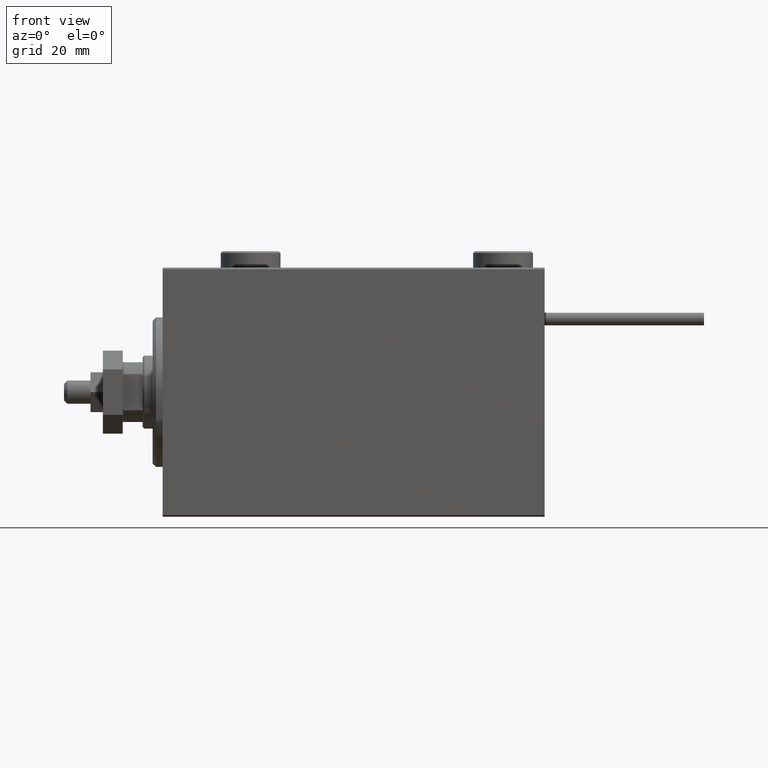
[diagram: clean part render]
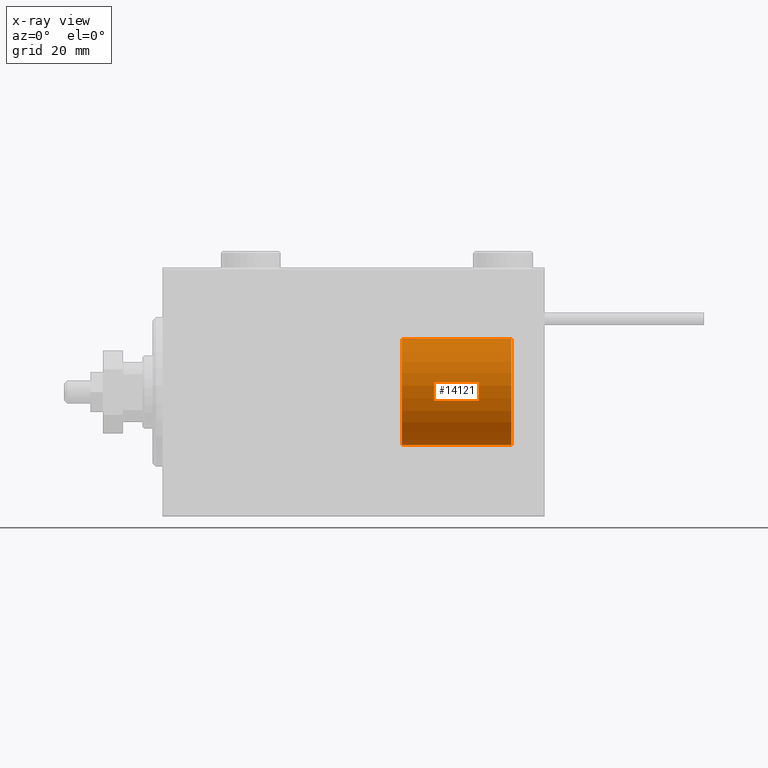
[diagram: x-ray — body ghosted, one internal face saturated and labeled with its STEP entity id]
A machine part, front view, then the same camera in x-ray: the body is ghosted and one INTERNAL B-rep face — a face not visible from any outside direction — is saturated and labeled: STEP entity #14121.
In plain terms, the highlighted cylindrical surface (partial cylindrical patch) has radius 16 mm, axis along (1, -0, -0).
Its self-contained STEP definition (entity closure, byte-faithful):
#18 = CIRCLE ( 'NONE', #46640, 16.00000000000000000 ) ;
#3944 = VECTOR ( 'NONE', #16253, 1000.000000000000000 ) ;
#5240 = DIRECTION ( 'NONE',  ( -0.000000000000000000, -0.000000000000000000, -1.000000000000000000 ) ) ;
#5735 = EDGE_CURVE ( 'NONE', #20322, #28662, #18, .T. ) ;
#7277 = ORIENTED_EDGE ( 'NONE', *, *, #19170, .T. ) ;
#8899 = CARTESIAN_POINT ( 'NONE',  ( 0.000000000000000000, 0.000000000000000000, 33.00000000000000000 ) ) ;
#9268 = DIRECTION ( 'NONE',  ( 0.000000000000000000, 0.000000000000000000, 1.000000000000000000 ) ) ;
#9772 = DIRECTION ( 'NONE',  ( 1.000000000000000000, 0.000000000000000000, 0.000000000000000000 ) ) ;
#11799 = LINE ( 'NONE', #39956, #3944 ) ;
#13785 = CARTESIAN_POINT ( 'NONE',  ( 16.00000000000000000, 1.959434878635765131E-15, 0.000000000000000000 ) ) ;
#14121 = ADVANCED_FACE ( 'NONE', ( #36547 ), #44598, .T. ) ;
#14710 = VECTOR ( 'NONE', #25496, 1000.000000000000000 ) ;
#14870 = EDGE_LOOP ( 'NONE', ( #30944, #26796, #33070, #7277 ) ) ;
#15395 = VERTEX_POINT ( 'NONE', #13785 ) ;
#16253 = DIRECTION ( 'NONE',  ( -0.000000000000000000, -0.000000000000000000, -1.000000000000000000 ) ) ;
#19170 = EDGE_CURVE ( 'NONE', #48885, #15395, #29775, .T. ) ;
#20322 = VERTEX_POINT ( 'NONE', #32929 ) ;
#21106 = LINE ( 'NONE', #45539, #14710 ) ;
#23712 = DIRECTION ( 'NONE',  ( 0.000000000000000000, 0.000000000000000000, 1.000000000000000000 ) ) ;
#24812 = DIRECTION ( 'NONE',  ( -1.000000000000000000, 0.000000000000000000, 0.000000000000000000 ) ) ;
#25496 = DIRECTION ( 'NONE',  ( -0.000000000000000000, -0.000000000000000000, -1.000000000000000000 ) ) ;
#26796 = ORIENTED_EDGE ( 'NONE', *, *, #5735, .F. ) ;
#28030 = CARTESIAN_POINT ( 'NONE',  ( 16.00000000000000000, 1.959434878635765131E-15, 33.00000000000000000 ) ) ;
#28662 = VERTEX_POINT ( 'NONE', #28030 ) ;
#29775 = CIRCLE ( 'NONE', #31456, 16.00000000000000000 ) ;
#30944 = ORIENTED_EDGE ( 'NONE', *, *, #45794, .F. ) ;
#31248 = CARTESIAN_POINT ( 'NONE',  ( 0.000000000000000000, 0.000000000000000000, 33.00000000000000000 ) ) ;
#31456 = AXIS2_PLACEMENT_3D ( 'NONE', #44720, #9268, #9772 ) ;
#32909 = CARTESIAN_POINT ( 'NONE',  ( -16.00000000000000000, 0.000000000000000000, 0.000000000000000000 ) ) ;
#32929 = CARTESIAN_POINT ( 'NONE',  ( -16.00000000000000000, 0.000000000000000000, 33.00000000000000000 ) ) ;
#33070 = ORIENTED_EDGE ( 'NONE', *, *, #51144, .T. ) ;
#35170 = DIRECTION ( 'NONE',  ( 1.000000000000000000, 0.000000000000000000, 0.000000000000000000 ) ) ;
#36547 = FACE_OUTER_BOUND ( 'NONE', #14870, .T. ) ;
#39956 = CARTESIAN_POINT ( 'NONE',  ( -16.00000000000000000, 0.000000000000000000, 33.00000000000000000 ) ) ;
#44598 = CYLINDRICAL_SURFACE ( 'NONE', #45424, 16.00000000000000000 ) ;
#44720 = CARTESIAN_POINT ( 'NONE',  ( 0.000000000000000000, 0.000000000000000000, 0.000000000000000000 ) ) ;
#45424 = AXIS2_PLACEMENT_3D ( 'NONE', #8899, #5240, #24812 ) ;
#45539 = CARTESIAN_POINT ( 'NONE',  ( 16.00000000000000000, 1.959434878635765131E-15, 33.00000000000000000 ) ) ;
#45794 = EDGE_CURVE ( 'NONE', #28662, #15395, #21106, .T. ) ;
#46640 = AXIS2_PLACEMENT_3D ( 'NONE', #31248, #23712, #35170 ) ;
#48885 = VERTEX_POINT ( 'NONE', #32909 ) ;
#51144 = EDGE_CURVE ( 'NONE', #20322, #48885, #11799, .T. ) ;